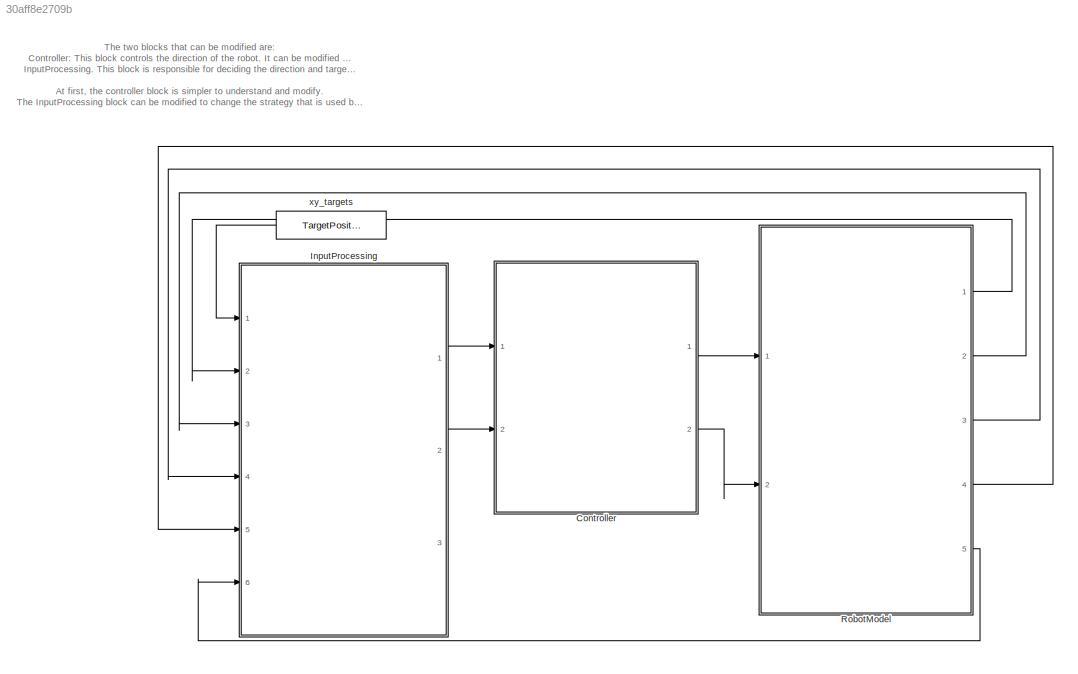
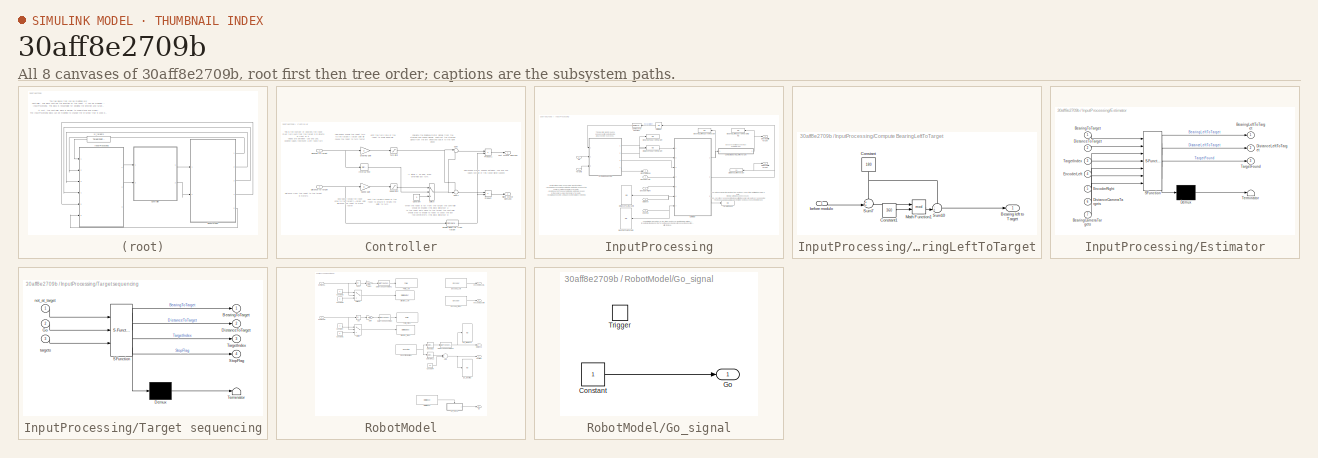
[diagram: thumbnail index - all 8 canvases of the model, root first then tree order]
MODEL slx_30aff8e2709b
KIND model
CONFIG InitFcn = close('all','force');\n
CONFIG PostLoadFcn = loadRobotParameters\n\nallotedRunTime = 3*60; % [sec] Time allowed for run\n\n% starting parameters\n% The timer starts once the robot has moved a certain distance from the\n% starting point\nstartPos = [50 50]; % [cm]\nstartingRadius = 10; % [cm]\n\n% Target parameters\ntargetBoundaryRadius = 7; % [cm] radius considered at location\nstatTimeReq = 2.5; % [sec] minimum time robot must be at location\n
CONFIG StartFcn = %reset(SimDisplay.getInstance());
BLOCK [SubSystem] Controller
  Ports = [2, 2]
  RequestExecContextInheritance = off
  TreatAsAtomicUnit = on
BLOCK [Inport] Controller/Bearing to target
  IconDisplay = Port number
  OutDataTypeStr = single
  SamplingMode = Sample based
  SignalType = real
BLOCK [Constant] Controller/Constant
  OutDataTypeStr = single
  Value = 0
BLOCK [Inport] Controller/Distance to target
  IconDisplay = Port number
  Port = 2
  PortDimensions = 1
  SampleTime = dT
  SamplingMode = Sample based
  SignalType = real
BLOCK [Reference] Controller/Enable when far from target  REF=simulink/Logic and Bit
Operations/Compare
To Constant
  OutDataTypeStr = uint8
  Ports = [1, 1]
  SourceBlock = simulink/Logic and Bit\nOperations/Compare\nTo Constant
  SourceType = Compare To Constant
  ZeroCross = on
  const = 7
  relop = >=
BLOCK [Reference] Controller/Interval Test  REF=simulink/Logic and Bit
Operations/Interval Test
  AttributesFormatString = Upper = %<uplimit>\nLower = %<lowlimit>
  IntervalClosedLeft = on
  IntervalClosedRight = on
  OutDataTypeStr = boolean
  Ports = [1, 1]
  SourceBlock = simulink/Logic and Bit\nOperations/Interval Test
  SourceType = Interval Test
  lowlimit = -20
  uplimit = 20
BLOCK [Outport] Controller/Left Motor Demand
  IconDisplay = Port number
  OutDataTypeStr = single
BLOCK [Product] Controller/Product
  InputSameDT = off
  OutDataTypeStr = Inherit: Inherit via internal rule
  Ports = [2, 1]
  RndMeth = Floor
  SaturateOnIntegerOverflow = off
BLOCK [Product] Controller/Product1
  InputSameDT = off
  OutDataTypeStr = Inherit: Inherit via internal rule
  Ports = [2, 1]
  RndMeth = Floor
  SaturateOnIntegerOverflow = off
BLOCK [Outport] Controller/Right Motor Demand
  IconDisplay = Port number
  OutDataTypeStr = single
  Port = 2
BLOCK [Gain] Controller/Speed gain
  Gain = 3
  OutDataTypeStr = Inherit: Inherit via internal rule
  ParamDataTypeStr = Inherit: Inherit via internal rule
  SaturateOnIntegerOverflow = off
BLOCK [Saturate] Controller/Speed limit
  AttributesFormatString = Upper = %<UpperLimit>\nLower = %<LowerLimit>
  InputPortMap = u0
  LowerLimit = 0
  Ports = [1, 1]
  UpperLimit = 40
BLOCK [Gain] Controller/Steering gain
  Gain = 2
  OutDataTypeStr = Inherit: Inherit via internal rule
  ParamDataTypeStr = Inherit: Inherit via internal rule
  SaturateOnIntegerOverflow = off
BLOCK [Sum] Controller/Sum
  IconShape = round
  InputSameDT = off
  Inputs = |-+
  OutDataTypeStr = Inherit: Inherit via internal rule
  Ports = [2, 1]
  SaturateOnIntegerOverflow = off
BLOCK [Sum] Controller/Sum1
  IconShape = round
  InputSameDT = off
  Inputs = ++|
  OutDataTypeStr = Inherit: Inherit via internal rule
  Ports = [2, 1]
  SaturateOnIntegerOverflow = off
BLOCK [Switch] Controller/Switch
  InputSameDT = off
  SaturateOnIntegerOverflow = off
  Threshold = 1
BLOCK [Saturate] Controller/Turn limit
  AttributesFormatString = Upper = %<UpperLimit>\nLower = %<LowerLimit>
  InputPortMap = u0
  LowerLimit = -50
  Ports = [1, 1]
  UpperLimit = 50
BLOCK [SubSystem] InputProcessing
  Ports = [6, 3]
  RequestExecContextInheritance = off
BLOCK [Outport] InputProcessing/Bearing left to Target
  IconDisplay = Port number
  SampleTime = dT
BLOCK [Display] InputProcessing/BearingLeftToCurrentTarget
  Decimation = 1
  Ports = [1]
BLOCK [Display] InputProcessing/BearingLeftToCurrentTargetDeg
  Decimation = 1
  Ports = [1]
BLOCK [Display] InputProcessing/BearingTo All Targets
  Decimation = 1
  Ports = [1]
BLOCK [Display] InputProcessing/BearingTo Current Target 
  Decimation = 1
  Ports = [1]
BLOCK [Reference] InputProcessing/Compare To Constant  REF=simulink/Logic and Bit
Operations/Compare
To Constant
  OutDataTypeStr = boolean
  Ports = [1, 1]
  SourceBlock = simulink/Logic and Bit\nOperations/Compare\nTo Constant
  SourceType = Compare To Constant
  ZeroCross = on
  const = 7
  relop = >
BLOCK [SubSystem] InputProcessing/Compute BearingLeftToTarget
  Ports = [1, 1]
  RequestExecContextInheritance = off
BLOCK [Outport] InputProcessing/Compute BearingLeftToTarget/Bearing left to Target
  IconDisplay = Port number
  SampleTime = dT
BLOCK [Constant] InputProcessing/Compute BearingLeftToTarget/Constant
  OutDataTypeStr = Inherit: Inherit via back propagation
  Value = 180
BLOCK [Constant] InputProcessing/Compute BearingLeftToTarget/Constant1
  OutDataTypeStr = Inherit: Inherit via back propagation
  Value = 360
BLOCK [Math] InputProcessing/Compute BearingLeftToTarget/Math Function1
  Operator = mod
  Ports = [2, 1]
BLOCK [Sum] InputProcessing/Compute BearingLeftToTarget/Sum10
  IconShape = round
  InputSameDT = off
  Inputs = -+|
  OutDataTypeStr = Inherit: Inherit via internal rule
  Ports = [2, 1]
  SaturateOnIntegerOverflow = off
BLOCK [Sum] InputProcessing/Compute BearingLeftToTarget/Sum7
  IconShape = round
  InputSameDT = off
  Inputs = ++|
  OutDataTypeStr = Inherit: Inherit via internal rule
  Ports = [2, 1]
  SaturateOnIntegerOverflow = off
BLOCK [Inport] InputProcessing/Compute BearingLeftToTarget/before modulo
  IconDisplay = Port number
BLOCK [Outport] InputProcessing/Distance left to Target
  IconDisplay = Port number
  Port = 2
BLOCK [Display] InputProcessing/DistanceLeftToTarget
  Decimation = 1
  Ports = [1]
BLOCK [Display] InputProcessing/DistanceTo All Targets
  Decimation = 1
  Ports = [1]
BLOCK [Display] InputProcessing/DistanceTo Current Target
  Decimation = 1
  Ports = [1]
BLOCK [Inport] InputProcessing/Encoder Left
  IconDisplay = Port number
  OutDataTypeStr = class(intEncoder(0))
  Port = 2
BLOCK [Inport] InputProcessing/Encoder Right
  IconDisplay = Port number
  OutDataTypeStr = class(intEncoder(0))
  Port = 3
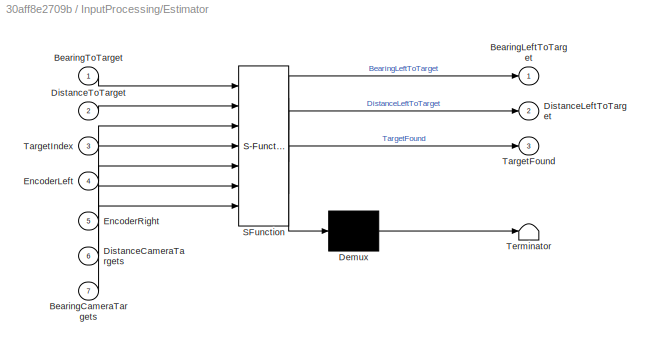
BLOCK [SubSystem] InputProcessing/Estimator
  ErrorFcn = Stateflow.Translate.translate
  PermitHierarchicalResolution = ExplicitOnly
  Ports = [7, 3]
  RequestExecContextInheritance = off
  SFBlockType = MATLAB Function
  TreatAsAtomicUnit = on
BLOCK [Demux] InputProcessing/Estimator/ Demux 
  Outputs = 1
  Ports = [1, 1]
BLOCK [S-Function] InputProcessing/Estimator/ SFunction 
  EnableBusSupport = on
  FunctionName = sf_sfun
  Parameters = AxleLength,EncRes,WheelRadius
  PortCounts = [7 4]
  Ports = [7, 4]
  Tag = Stateflow S-Function TargetModel 1
BLOCK [Terminator] InputProcessing/Estimator/ Terminator 
BLOCK [Inport] InputProcessing/Estimator/BearingCameraTargets
  IconDisplay = Port number
  Port = 7
BLOCK [Outport] InputProcessing/Estimator/BearingLeftToTarget
  IconDisplay = Port number
BLOCK [Inport] InputProcessing/Estimator/BearingToTarget
  IconDisplay = Port number
BLOCK [Inport] InputProcessing/Estimator/DistanceCameraTargets
  IconDisplay = Port number
  Port = 6
BLOCK [Outport] InputProcessing/Estimator/DistanceLeftToTarget
  IconDisplay = Port number
  Port = 2
BLOCK [Inport] InputProcessing/Estimator/DistanceToTarget
  IconDisplay = Port number
  Port = 2
BLOCK [Inport] InputProcessing/Estimator/EncoderLeft
  IconDisplay = Port number
  Port = 4
BLOCK [Inport] InputProcessing/Estimator/EncoderRight
  IconDisplay = Port number
  Port = 5
BLOCK [Outport] InputProcessing/Estimator/TargetFound
  IconDisplay = Port number
  Port = 3
BLOCK [Inport] InputProcessing/Estimator/TargetIndex
  IconDisplay = Port number
  Port = 3
BLOCK [Inport] InputProcessing/Go
  IconDisplay = Port number
  Port = 6
BLOCK [SubSystem] InputProcessing/Target sequencing
  ErrorFcn = Stateflow.Translate.translate
  PermitHierarchicalResolution = ExplicitOnly
  Ports = [3, 4]
  RequestExecContextInheritance = off
  SFBlockType = MATLAB Function
  SystemSampleTime = dT
  TreatAsAtomicUnit = on
BLOCK [Demux] InputProcessing/Target sequencing/ Demux 
  Outputs = 1
  Ports = [1, 1]
BLOCK [S-Function] InputProcessing/Target sequencing/ SFunction 
  EnableBusSupport = on
  FunctionName = sf_sfun
  PortCounts = [3 5]
  Ports = [3, 5]
  Tag = Stateflow S-Function TargetModel 2
BLOCK [Terminator] InputProcessing/Target sequencing/ Terminator 
BLOCK [Outport] InputProcessing/Target sequencing/BearingToTarget
  IconDisplay = Port number
BLOCK [Outport] InputProcessing/Target sequencing/DistanceToTarget
  IconDisplay = Port number
  Port = 2
BLOCK [Inport] InputProcessing/Target sequencing/Go
  IconDisplay = Port number
  Port = 2
BLOCK [Outport] InputProcessing/Target sequencing/StopFlag
  IconDisplay = Port number
  Port = 4
BLOCK [Outport] InputProcessing/Target sequencing/TargetIndex
  IconDisplay = Port number
  Port = 3
BLOCK [Inport] InputProcessing/Target sequencing/not_at_target
  IconDisplay = Port number
BLOCK [Inport] InputProcessing/Target sequencing/targets
  IconDisplay = Port number
  Port = 3
BLOCK [Display] InputProcessing/TargetFound
  Decimation = 1
  Ports = [1]
BLOCK [Inport] InputProcessing/Targets
  IconDisplay = Port number
BLOCK [UnitDelay] InputProcessing/Unit Delay
  InputProcessing = Elements as channels (sample based)
  SampleTime = dT
BLOCK [Outport] InputProcessing/allTargetDone
  IconDisplay = Port number
  Port = 3
BLOCK [Inport] InputProcessing/bearing
  IconDisplay = Port number
  Port = 5
BLOCK [Inport] InputProcessing/distance
  IconDisplay = Port number
  Port = 4
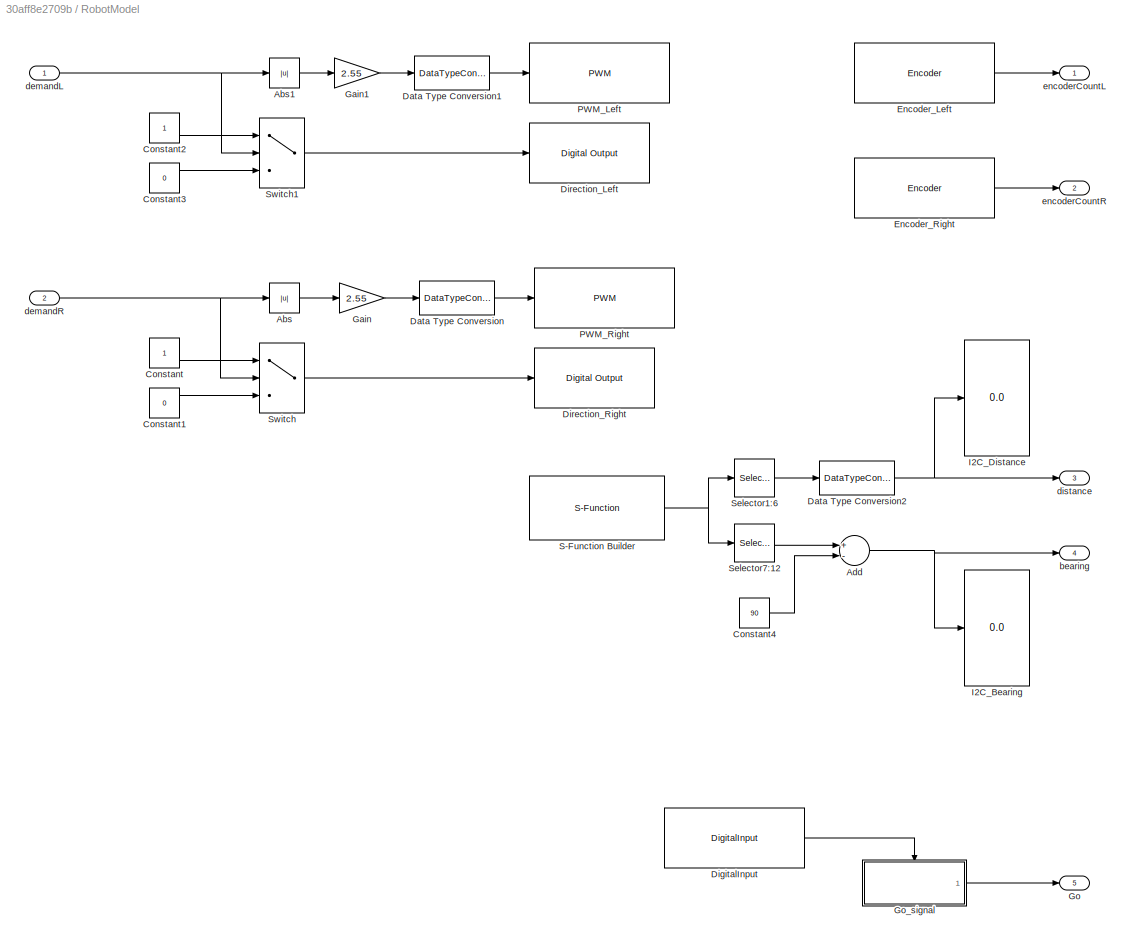
BLOCK [SubSystem] RobotModel
  Ports = [2, 5]
  RequestExecContextInheritance = off
BLOCK [Abs] RobotModel/Abs
  SaturateOnIntegerOverflow = off
BLOCK [Abs] RobotModel/Abs1
  SaturateOnIntegerOverflow = off
BLOCK [Sum] RobotModel/Add
  InputSameDT = off
  Inputs = +-
  OutDataTypeStr = int8
  Ports = [2, 1]
  SaturateOnIntegerOverflow = off
BLOCK [Constant] RobotModel/Constant
  OutDataTypeStr = uint8
BLOCK [Constant] RobotModel/Constant1
  OutDataTypeStr = uint8
  Value = 0
BLOCK [Constant] RobotModel/Constant2
  OutDataTypeStr = uint8
BLOCK [Constant] RobotModel/Constant3
  OutDataTypeStr = uint8
  Value = 0
BLOCK [Constant] RobotModel/Constant4
  OutDataTypeStr = uint8
  Value = 90
BLOCK [DataTypeConversion] RobotModel/Data Type Conversion
  RndMeth = Floor
BLOCK [DataTypeConversion] RobotModel/Data Type Conversion1
  RndMeth = Floor
BLOCK [DataTypeConversion] RobotModel/Data Type Conversion2
  OutDataTypeStr = int16
  RndMeth = Floor
BLOCK [Reference] RobotModel/DigitalInput  REF=arduinodue_drivers/DigitalInput  (lib defined in slx_af165bb4e225)
  Ports = [0, 1]
  SourceBlock = arduinodue_drivers/DigitalInput
  SourceType = Arduino Digital Input
  isPullUp = on
  pinNumber = 17
BLOCK [Reference] RobotModel/Direction_Left  REF=arduinolib/Digital Output
  Ports = [1]
  SourceBlock = arduinolib/Digital Output
  SourceType = Arduino Digital Output
  pinNumber = 7
BLOCK [Reference] RobotModel/Direction_Right  REF=arduinolib/Digital Output
  Ports = [1]
  SourceBlock = arduinolib/Digital Output
  SourceType = Arduino Digital Output
  pinNumber = 4
BLOCK [Reference] RobotModel/Encoder_Left  REF=arduinodue_drivers/Encoder  (lib defined in slx_af165bb4e225)
  Ports = [0, 1]
  SourceBlock = arduinodue_drivers/Encoder
  SourceType = Arduino Encoder
  pinA = 18
  pinB = 19
BLOCK [Reference] RobotModel/Encoder_Right  REF=arduinodue_drivers/Encoder  (lib defined in slx_af165bb4e225)
  Ports = [0, 1]
  SourceBlock = arduinodue_drivers/Encoder
  SourceType = Arduino Encoder
  pinA = 2
  pinB = 3
BLOCK [Gain] RobotModel/Gain
  Gain = 2.55
  OutDataTypeStr = Inherit: Inherit via internal rule
  ParamDataTypeStr = Inherit: Inherit via internal rule
  SaturateOnIntegerOverflow = off
BLOCK [Gain] RobotModel/Gain1
  Gain = 2.55
  OutDataTypeStr = Inherit: Inherit via internal rule
  ParamDataTypeStr = Inherit: Inherit via internal rule
  SaturateOnIntegerOverflow = off
BLOCK [Outport] RobotModel/Go
  IconDisplay = Port number
  Port = 5
BLOCK [SubSystem] RobotModel/Go_signal
  Ports = [0, 1, 0, 1]
  RequestExecContextInheritance = off
  TreatAsAtomicUnit = on
BLOCK [Constant] RobotModel/Go_signal/Constant
  OutDataTypeStr = uint8
BLOCK [Outport] RobotModel/Go_signal/Go
  IconDisplay = Port number
  InitialOutput = 0
  OutDataTypeStr = uint8
BLOCK [TriggerPort] RobotModel/Go_signal/Trigger
  Ports = []
  StatesWhenEnabling = held
  TriggerType = falling
BLOCK [Display] RobotModel/I2C_Bearing
  Decimation = 1
  Ports = [1]
BLOCK [Display] RobotModel/I2C_Distance
  Decimation = 1
  Ports = [1]
BLOCK [Reference] RobotModel/PWM_Left  REF=arduinodue_drivers/PWM  (lib defined in slx_af165bb4e225)
  Ports = [1]
  SourceBlock = arduinodue_drivers/PWM
  SourceType = Arduino PWM
  pinNumber = 6
BLOCK [Reference] RobotModel/PWM_Right  REF=arduinodue_drivers/PWM  (lib defined in slx_af165bb4e225)
  Ports = [1]
  SourceBlock = arduinodue_drivers/PWM
  SourceType = Arduino PWM
  pinNumber = 5
BLOCK [S-Function] RobotModel/S-Function Builder
  CopyFcn = set_param(gcbh,'LinkStatus','none')
  EnableBusSupport = off
  FunctionName = I2C_S_Function
  InitFcn = try, set_param(gcb,'FunctionName','I2C_S_Function'), end
  OpenFcn = sfunctionwizard(gcbh)
  Parameters = uint8(1)
  Ports = [1, 1]
  PreSaveFcn = try, set_param(gcb,'FunctionName','I2C_S_Function'), end
  SFunctionModules = I2C_S_Function_wrapper
BLOCK [Selector] RobotModel/Selector1:6
  Indices = [1:6]
  InputPortWidth = 12
  Ports = [1, 1]
BLOCK [Selector] RobotModel/Selector7:12
  Indices = [7:12]
  InputPortWidth = 12
  Ports = [1, 1]
BLOCK [Switch] RobotModel/Switch
  Criteria = u2 > Threshold
  InputSameDT = off
  SaturateOnIntegerOverflow = off
BLOCK [Switch] RobotModel/Switch1
  Criteria = u2 > Threshold
  InputSameDT = off
  SaturateOnIntegerOverflow = off
BLOCK [Outport] RobotModel/bearing
  IconDisplay = Port number
  Port = 4
BLOCK [Inport] RobotModel/demandL
  IconDisplay = Port number
  SampleTime = 0
BLOCK [Inport] RobotModel/demandR
  IconDisplay = Port number
  Port = 2
  SampleTime = 0
BLOCK [Outport] RobotModel/distance
  IconDisplay = Port number
  Port = 3
BLOCK [Outport] RobotModel/encoderCountL
  IconDisplay = Port number
  OutDataTypeStr = class(intEncoder(0))
BLOCK [Outport] RobotModel/encoderCountR
  IconDisplay = Port number
  OutDataTypeStr = class(intEncoder(0))
  Port = 2
BLOCK [Constant] xy_targets
  OutDataTypeStr = single
  SampleTime = 1
  Value = TargetPositions
ANNOTATION (root): The two blocks that can be modified are: Controller: This block controls the direction of the robot. It can be modified to adjust the speed at which the robot will move to its indicated target and direction. InputProcessing. This block is responsible for deciding the direction and target that will be chosen by the robot. At first, the controller block is simpler to understand and modify. The Input...<+166ch>
ANNOTATION Controller: Calculate the individual motor signals from the steering and speed signals. Subtract the steering signal from the left wheel and add it to the right wheel
ANNOTATION Controller: Demanded motor speeds between -100 and 100 Values outside of this range will be capped
ANNOTATION Controller: Distance from the robot to the target in meters
ANNOTATION Controller: How quickly should the robot drive to the target? A larger gain will cause the robot to move faster
ANNOTATION Controller: How quickly should the robot turn to the target? A larger gain will cause the robot to turn faster
ANNOTATION Controller: If within +- 20 deg, drive. Otherwise just turn.
ANNOTATION Controller: Limit the forward speed of the robot to ensure it retains the ability to turn
ANNOTATION Controller: Limit the turn rate of the robot to avoid wheel slip.
ANNOTATION Controller: This is the number of degrees the robot must turn such that the target is in directly in front of it. Values are between -180 and 180, positive values represent a left hand turn
ANNOTATION Controller: When the robot is far from the target the controller should be enabled (this block will output 1) As the robot gets close to the target the controller should stop to enable to robot to coast the last few centimeters (this block will output 0)
ANNOTATION InputProcessing: Ensure robot takes shortest angle to target.
ANNOTATION InputProcessing: Input from the camera. The camera input contains: - Input 4: distance: The distance to the targets that are seen by the camera (DistanceCameraTargets) - Input 5: bearing: The bearing to the targets that are seen by the camera. (BearingCameraTargets) - Input 6: ImageCounter: An image counter, that is incremented each time the camera is reading a new image. Warning: DistanceCameraTargets and Bearing...<+207ch>
ANNOTATION InputProcessing: TargetFound indicates whether the robot has "seen" its target within the camera data. If non-zero it corresponds to the index within the camera targets corresponding to the target that has been chosen. This display can be used to check that the robot has choosen the intended target.
ANNOTATION InputProcessing: The Estimator block is the "brain" of the robot. According to the information read from the camera and the target objective given by the TargetSequencing block, it chooses the direction towards which the robot will try to move.
ANNOTATION InputProcessing: This block iterates through a sequence of targets, stopping at each one for 3 seconds.
NET Controller/Bearing to target:1 -> Controller/Interval Test:1, Controller/Steering gain:1
LINE Controller/Constant:1 -> Controller/Switch:3
NET Controller/Distance to target:1 -> Controller/Enable when far from target:1, Controller/Speed gain:1
NET Controller/Enable when far from target:1 -> Controller/Product1:2, Controller/Product:2
LINE Controller/Interval Test:1 -> Controller/Switch:2
LINE Controller/Product1:1 -> Controller/Left Motor Demand:1
LINE Controller/Product:1 -> Controller/Right Motor Demand:1
LINE Controller/Speed gain:1 -> Controller/Speed limit:1
LINE Controller/Speed limit:1 -> Controller/Switch:1
LINE Controller/Steering gain:1 -> Controller/Turn limit:1
LINE Controller/Sum1:1 -> Controller/Product:1
LINE Controller/Sum:1 -> Controller/Product1:1
NET Controller/Switch:1 -> Controller/Sum1:2, Controller/Sum:2
NET Controller/Turn limit:1 -> Controller/Sum1:1, Controller/Sum:1
LINE Controller:1 -> RobotModel:1
LINE Controller:2 -> RobotModel:2
LINE InputProcessing/Compare To Constant:1 -> InputProcessing/Target sequencing:1
LINE InputProcessing/Compute BearingLeftToTarget/Constant1:1 -> InputProcessing/Compute BearingLeftToTarget/Math Function1:2
NET InputProcessing/Compute BearingLeftToTarget/Constant:1 -> InputProcessing/Compute BearingLeftToTarget/Sum10:1, InputProcessing/Compute BearingLeftToTarget/Sum7:1
LINE InputProcessing/Compute BearingLeftToTarget/Math Function1:1 -> InputProcessing/Compute BearingLeftToTarget/Sum10:2
LINE InputProcessing/Compute BearingLeftToTarget/Sum10:1 -> InputProcessing/Compute BearingLeftToTarget/Bearing left to Target:1
LINE InputProcessing/Compute BearingLeftToTarget/Sum7:1 -> InputProcessing/Compute BearingLeftToTarget/Math Function1:1
LINE InputProcessing/Compute BearingLeftToTarget/before modulo:1 -> InputProcessing/Compute BearingLeftToTarget/Sum7:2
NET InputProcessing/Compute BearingLeftToTarget:1 -> InputProcessing/Bearing left to Target:1, InputProcessing/BearingLeftToCurrentTargetDeg:1
LINE InputProcessing/Encoder Left:1 -> InputProcessing/Estimator:4
LINE InputProcessing/Encoder Right:1 -> InputProcessing/Estimator:5
NET InputProcessing/Estimator:1 -> InputProcessing/BearingLeftToCurrentTarget:1, InputProcessing/Compute BearingLeftToTarget:1
NET InputProcessing/Estimator:2 -> InputProcessing/Distance left to Target:1, InputProcessing/DistanceLeftToTarget:1, InputProcessing/Unit Delay:1
LINE InputProcessing/Estimator:3 -> InputProcessing/TargetFound:1
LINE InputProcessing/Go:1 -> InputProcessing/Target sequencing:2
NET InputProcessing/Target sequencing:1 -> InputProcessing/BearingTo Current Target :1, InputProcessing/Estimator:1
NET InputProcessing/Target sequencing:2 -> InputProcessing/DistanceTo Current Target:1, InputProcessing/Estimator:2
LINE InputProcessing/Target sequencing:3 -> InputProcessing/Estimator:3
LINE InputProcessing/Target sequencing:4 -> InputProcessing/allTargetDone:1
LINE InputProcessing/Targets:1 -> InputProcessing/Target sequencing:3
LINE InputProcessing/Unit Delay:1 -> InputProcessing/Compare To Constant:1
NET InputProcessing/bearing:1 -> InputProcessing/BearingTo All Targets:1, InputProcessing/Estimator:7
NET InputProcessing/distance:1 -> InputProcessing/DistanceTo All Targets:1, InputProcessing/Estimator:6
LINE InputProcessing:1 -> Controller:1
LINE InputProcessing:2 -> Controller:2
LINE RobotModel/Abs1:1 -> RobotModel/Gain1:1
LINE RobotModel/Abs:1 -> RobotModel/Gain:1
NET RobotModel/Add:1 -> RobotModel/I2C_Bearing:1, RobotModel/bearing:1
LINE RobotModel/Constant1:1 -> RobotModel/Switch:3
LINE RobotModel/Constant2:1 -> RobotModel/Switch1:1
LINE RobotModel/Constant3:1 -> RobotModel/Switch1:3
LINE RobotModel/Constant4:1 -> RobotModel/Add:2
LINE RobotModel/Constant:1 -> RobotModel/Switch:1
LINE RobotModel/Data Type Conversion1:1 -> RobotModel/PWM_Left:1
NET RobotModel/Data Type Conversion2:1 -> RobotModel/I2C_Distance:1, RobotModel/distance:1
LINE RobotModel/Data Type Conversion:1 -> RobotModel/PWM_Right:1
LINE RobotModel/DigitalInput:1 -> RobotModel/Go_signal:trigger
LINE RobotModel/Encoder_Left:1 -> RobotModel/encoderCountL:1
LINE RobotModel/Encoder_Right:1 -> RobotModel/encoderCountR:1
LINE RobotModel/Gain1:1 -> RobotModel/Data Type Conversion1:1
LINE RobotModel/Gain:1 -> RobotModel/Data Type Conversion:1
LINE RobotModel/Go_signal/Constant:1 -> RobotModel/Go_signal/Go:1
LINE RobotModel/Go_signal:1 -> RobotModel/Go:1
NET RobotModel/S-Function Builder:1 -> RobotModel/Selector1:6:1, RobotModel/Selector7:12:1
LINE RobotModel/Selector1:6:1 -> RobotModel/Data Type Conversion2:1
LINE RobotModel/Selector7:12:1 -> RobotModel/Add:1
LINE RobotModel/Switch1:1 -> RobotModel/Direction_Left:1
LINE RobotModel/Switch:1 -> RobotModel/Direction_Right:1
NET RobotModel/demandL:1 -> RobotModel/Abs1:1, RobotModel/Switch1:2
NET RobotModel/demandR:1 -> RobotModel/Abs:1, RobotModel/Switch:2
LINE RobotModel:1 -> InputProcessing:2
LINE RobotModel:2 -> InputProcessing:3
LINE RobotModel:3 -> InputProcessing:4
LINE RobotModel:4 -> InputProcessing:5
LINE RobotModel:5 -> InputProcessing:6
LINE xy_targets:1 -> InputProcessing:1
note: NET lines group one-source signal fan-out (src -> all destinations, sorted); 1:1 wires keep LINE
